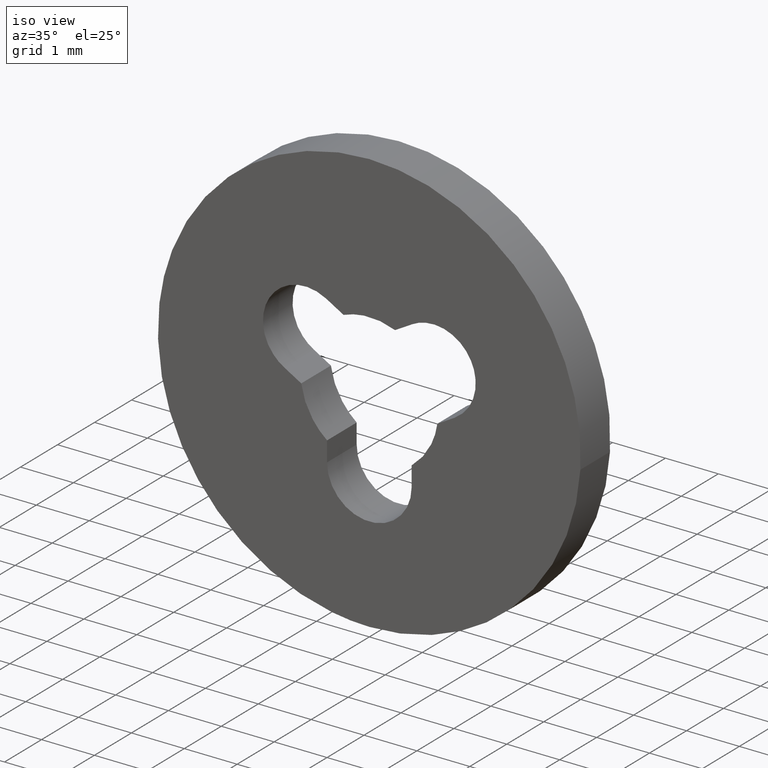
[diagram: clean part render]
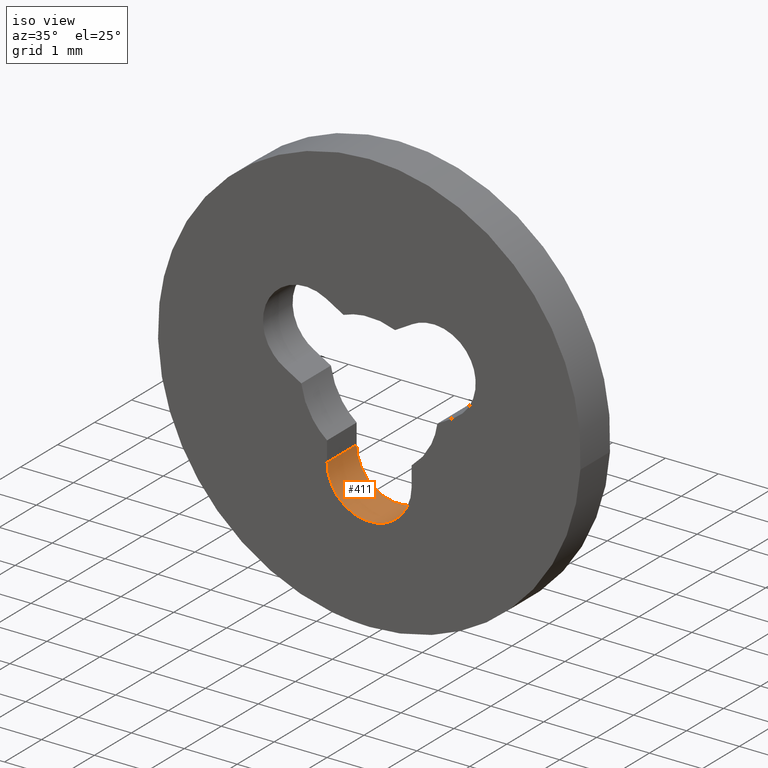
[diagram: same view with one face highlighted and labeled with its STEP entity id]
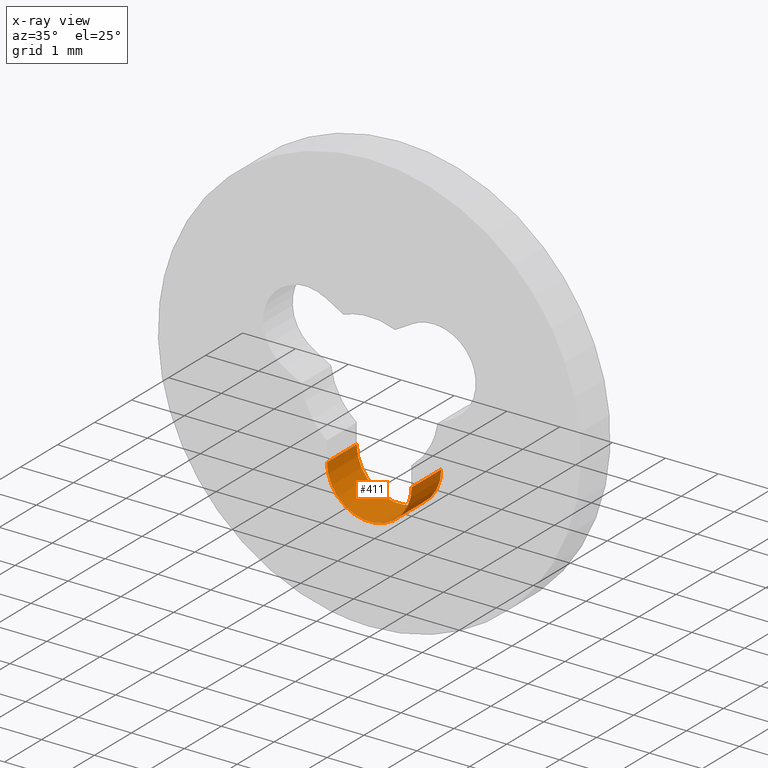
[diagram: x-ray of the same camera — body ghosted, the highlighted face saturated]
A machine part, iso view. The second image highlights one B-rep face of the part: STEP entity #411.
The next image is the same camera in x-ray: the body ghosted, the highlighted face saturated — about 0% of this face is hidden behind the body in this view.
In plain terms, the highlighted face is a freeform B-spline surface patch.
Its self-contained STEP definition (entity closure, byte-faithful):
#324=CARTESIAN_POINT('',(0.799999999999988,0.0,-1.399999860373652));
#325=VERTEX_POINT('',#324);
#332=CARTESIAN_POINT('',(0.799999999999988,0.800000000000023,-1.399999860373652));
#333=VERTEX_POINT('',#332);
#339=CARTESIAN_POINT('',(0.799999999999988,0.800000000000023,-1.399999860373652));
#340=CARTESIAN_POINT('',(0.799999999999988,0.0,-1.399999860373652));
#341=QUASI_UNIFORM_CURVE('',1,(#339,#340),.UNSPECIFIED.,.F.,.U.);
#342=EDGE_CURVE('',#333,#325,#341,.T.);
#347=CARTESIAN_POINT('',(0.799238577265486,0.820000000000024,-1.365104490107732));
#348=CARTESIAN_POINT('',(0.799238577265486,-0.020500000000001,-1.365104490107732));
#349=CARTESIAN_POINT('',(0.836333596761906,0.820000000000024,-2.214720119668255));
#350=CARTESIAN_POINT('',(0.836333596761906,-0.020500000000001,-2.214720119668255));
#351=CARTESIAN_POINT('',(-0.013961925149828,0.820000000000024,-2.199878156125112));
#352=CARTESIAN_POINT('',(-0.013961925149828,-0.020500000000001,-2.199878156125112));
#353=CARTESIAN_POINT('',(-0.864257447061561,0.820000000000024,-2.185036192581969));
#354=CARTESIAN_POINT('',(-0.864257447061561,-0.020500000000001,-2.185036192581969));
#355=CARTESIAN_POINT('',(-0.797533866986502,0.820000000000024,-1.337232723417723));
#356=CARTESIAN_POINT('',(-0.797533866986502,-0.020500000000001,-1.337232723417723));
#364=(BOUNDED_SURFACE()B_SPLINE_SURFACE(1,2,((#347,#349,#351,#353,#355),(#348,#350,#352,#354,#356)),.UNSPECIFIED.,.F.,.F.,.U.)B_SPLINE_SURFACE_WITH_KNOTS((2,2),(3,2,3),(0.0,1.0),(0.0,1.0,2.0),.UNSPECIFIED.)GEOMETRIC_REPRESENTATION_ITEM()RATIONAL_B_SPLINE_SURFACE(((1.0,0.685182990326359,1.0,0.685182990326359,1.0),(1.0,0.685182990326359,1.0,0.685182990326359,1.0)))REPRESENTATION_ITEM('')SURFACE());
#365=CARTESIAN_POINT('',(-0.799999999999990,0.0,-1.400000000000000));
#366=VERTEX_POINT('',#365);
#367=CARTESIAN_POINT('',(-0.799999999999990,0.0,-1.400000000000000));
#368=CARTESIAN_POINT('',(-0.800000000000000,0.0,-1.861880246379778));
#369=CARTESIAN_POINT('',(-0.399999959693345,0.0,-2.092820346298607));
#370=CARTESIAN_POINT('',(0.000000080613311,0.0,-2.323760446217437));
#371=CARTESIAN_POINT('',(0.400000080613307,0.0,-2.092820276485431));
#372=CARTESIAN_POINT('',(0.800000080613303,0.0,-1.861880106753424));
#373=CARTESIAN_POINT('',(0.799999999999988,0.0,-1.399999860373652));
#381=(BOUNDED_CURVE()B_SPLINE_CURVE(2,(#367,#368,#369,#370,#371,#372,#373),.UNSPECIFIED.,.F.,.U.)B_SPLINE_CURVE_WITH_KNOTS((3,2,2,3),(0.0,0.333333333333333,0.666666666666667,1.0),.UNSPECIFIED.)CURVE()GEOMETRIC_REPRESENTATION_ITEM()RATIONAL_B_SPLINE_CURVE((1.0,0.866025389240027,1.0,0.866025389240027,1.0,0.866025389240027,1.0))REPRESENTATION_ITEM(''));
#382=EDGE_CURVE('',#366,#325,#381,.T.);
#383=ORIENTED_EDGE('',*,*,#382,.T.);
#384=ORIENTED_EDGE('',*,*,#342,.F.);
#385=CARTESIAN_POINT('',(-0.799999999999990,0.800000000000023,-1.400000000000000));
#386=VERTEX_POINT('',#385);
#387=CARTESIAN_POINT('',(-0.799999999999990,0.800000000000023,-1.400000000000000));
#388=CARTESIAN_POINT('',(-0.800000000000000,0.800000000000023,-1.861880246379778));
#389=CARTESIAN_POINT('',(-0.399999959693345,0.800000000000023,-2.092820346298607));
#390=CARTESIAN_POINT('',(0.000000080613311,0.800000000000023,-2.323760446217437));
#391=CARTESIAN_POINT('',(0.400000080613307,0.800000000000023,-2.092820276485431));
#392=CARTESIAN_POINT('',(0.800000080613303,0.800000000000023,-1.861880106753424));
#393=CARTESIAN_POINT('',(0.799999999999988,0.800000000000023,-1.399999860373652));
#401=(BOUNDED_CURVE()B_SPLINE_CURVE(2,(#387,#388,#389,#390,#391,#392,#393),.UNSPECIFIED.,.F.,.U.)B_SPLINE_CURVE_WITH_KNOTS((3,2,2,3),(0.0,0.333333333333333,0.666666666666667,1.0),.UNSPECIFIED.)CURVE()GEOMETRIC_REPRESENTATION_ITEM()RATIONAL_B_SPLINE_CURVE((1.0,0.866025389240027,1.0,0.866025389240027,1.0,0.866025389240027,1.0))REPRESENTATION_ITEM(''));
#402=EDGE_CURVE('',#386,#333,#401,.T.);
#403=ORIENTED_EDGE('',*,*,#402,.F.);
#404=CARTESIAN_POINT('',(-0.799999999999990,0.800000000000023,-1.400000000000000));
#405=CARTESIAN_POINT('',(-0.799999999999990,0.0,-1.400000000000000));
#406=QUASI_UNIFORM_CURVE('',1,(#404,#405),.UNSPECIFIED.,.F.,.U.);
#407=EDGE_CURVE('',#386,#366,#406,.T.);
#408=ORIENTED_EDGE('',*,*,#407,.T.);
#409=EDGE_LOOP('',(#383,#384,#403,#408));
#410=FACE_OUTER_BOUND('',#409,.T.);
#411=ADVANCED_FACE('',(#410),#364,.F.);